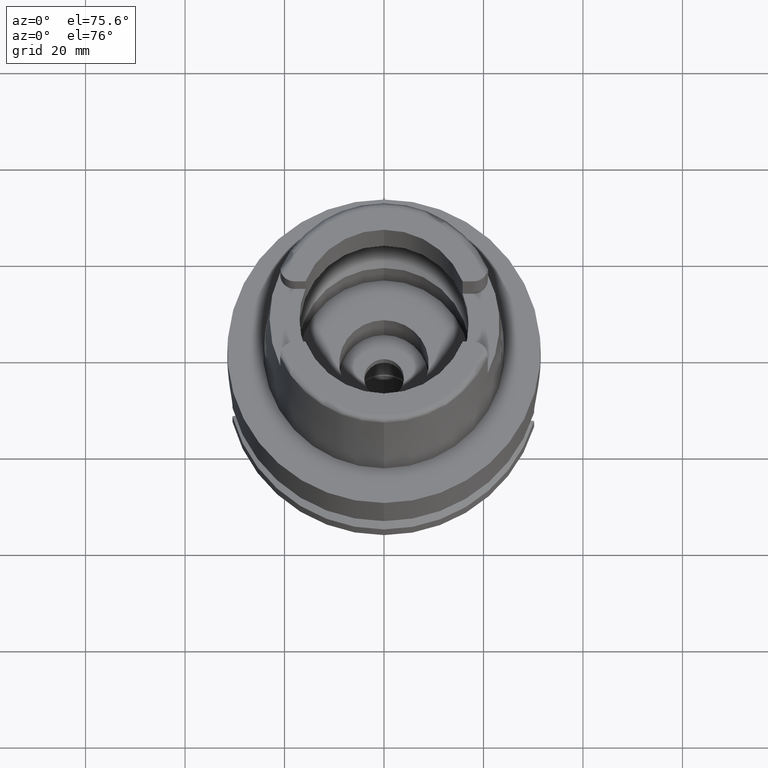
[diagram: clean part render]
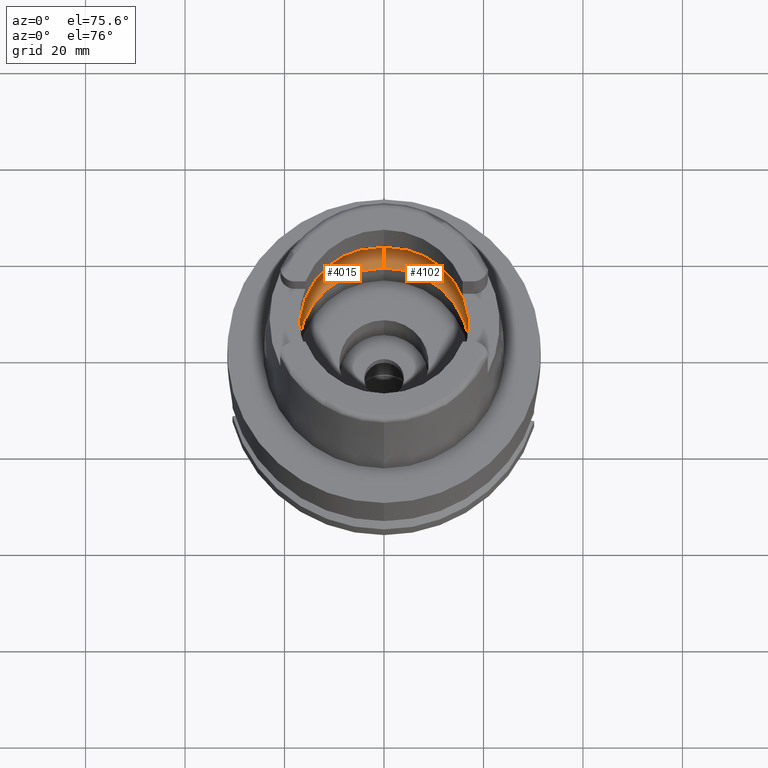
[diagram: same view with one multi-face feature highlighted, each face labeled with its STEP entity id]
A machine part, auxiliary view. The highlighted faces form ONE feature: a constant-radius fillet chain: 2 tangent blend faces with common blend radius 8 mm. The faces share edges in the B-rep.
Their STEP definitions:
[1] entity #4102 (Torus):
#2037=CARTESIAN_POINT('',(0.E0,-1.2E1,6.186348233825E0));
#2038=DIRECTION('',(-1.E0,0.E0,0.E0));
#2039=DIRECTION('',(0.E0,-6.5625E-1,-7.545435292281E-1));
#2040=AXIS2_PLACEMENT_3D('',#2037,#2038,#2039);
#2101=CARTESIAN_POINT('',(1.984575864666E1,-2.479085262491E0,6.186348233825E0));
#2130=CARTESIAN_POINT('',(1.984575864666E1,2.479085262491E0,6.186348233825E0));
#2149=CARTESIAN_POINT('',(1.994501428476E1,0.E0,5.25E0));
#2150=CARTESIAN_POINT('',(1.994501428476E1,-3.022109186395E-1,5.25E0));
#2151=CARTESIAN_POINT('',(1.994018886112E1,-9.058486760299E-1,
5.323260138817E0));
#2152=CARTESIAN_POINT('',(1.991332874853E1,-1.758885968800E0,5.646923075843E0));
#2153=CARTESIAN_POINT('',(1.987370755586E1,-2.255346565443E0,5.989213921339E0));
#2154=CARTESIAN_POINT('',(1.984575864666E1,-2.479085262491E0,6.186348233825E0));
#2159=CARTESIAN_POINT('',(0.E0,0.E0,6.186348233825E0));
#2160=DIRECTION('',(0.E0,0.E0,-1.E0));
#2161=DIRECTION('',(9.922879323328E-1,-1.239542631245E-1,0.E0));
#2162=AXIS2_PLACEMENT_3D('',#2159,#2160,#2161);
#2167=CARTESIAN_POINT('',(0.E0,0.E0,1.500000000001E-1));
#2168=DIRECTION('',(0.E0,0.E0,1.E0));
#2169=DIRECTION('',(0.E0,-1.E0,0.E0));
#2170=AXIS2_PLACEMENT_3D('',#2167,#2168,#2169);
#2175=CARTESIAN_POINT('',(0.E0,1.2E1,6.186348233825E0));
#2176=DIRECTION('',(1.E0,0.E0,0.E0));
#2177=DIRECTION('',(0.E0,6.5625E-1,-7.545435292281E-1));
#2178=AXIS2_PLACEMENT_3D('',#2175,#2176,#2177);
#2183=CARTESIAN_POINT('',(0.E0,0.E0,6.186348233825E0));
#2184=DIRECTION('',(0.E0,0.E0,-1.E0));
#2185=DIRECTION('',(0.E0,1.E0,0.E0));
#2186=AXIS2_PLACEMENT_3D('',#2183,#2184,#2185);
#2191=CARTESIAN_POINT('',(1.984575864666E1,2.479085262491E0,6.186348233825E0));
#2192=CARTESIAN_POINT('',(1.987370781167E1,2.255344517610E0,5.989212117010E0));
#2193=CARTESIAN_POINT('',(1.991332909699E1,1.758880408516E0,5.646919602665E0));
#2194=CARTESIAN_POINT('',(1.994018903230E1,9.058380857037E-1,5.323257641096E0));
#2195=CARTESIAN_POINT('',(1.994501428476E1,3.022062841843E-1,5.25E0));
#2196=CARTESIAN_POINT('',(1.994501428476E1,0.E0,5.25E0));
#2356=CARTESIAN_POINT('',(0.E0,-2.E1,6.186348233825E0));
#2357=VERTEX_POINT('',#2356);
#2358=CARTESIAN_POINT('',(0.E0,2.E1,6.186348233825E0));
#2359=VERTEX_POINT('',#2358);
#2364=VERTEX_POINT('',#2101);
#2366=VERTEX_POINT('',#2149);
#2367=VERTEX_POINT('',#2130);
#2368=CARTESIAN_POINT('',(0.E0,1.725E1,1.500000000001E-1));
#2369=VERTEX_POINT('',#2368);
#2370=CARTESIAN_POINT('',(0.E0,-1.725E1,1.500000000001E-1));
#2371=VERTEX_POINT('',#2370);
#4087=CARTESIAN_POINT('',(0.E0,0.E0,6.186348233825E0));
#4088=DIRECTION('',(0.E0,0.E0,1.E0));
#4089=DIRECTION('',(0.E0,1.E0,0.E0));
#4090=AXIS2_PLACEMENT_3D('',#4087,#4088,#4089);
#4091=TOROIDAL_SURFACE('',#4090,1.2E1,8.E0);
#4092=ORIENTED_EDGE('',*,*,#4077,.T.);
#4093=ORIENTED_EDGE('',*,*,#4066,.T.);
#4094=ORIENTED_EDGE('',*,*,#4009,.F.);
#4095=ORIENTED_EDGE('',*,*,#3974,.T.);
#4096=ORIENTED_EDGE('',*,*,#4006,.T.);
#4097=ORIENTED_EDGE('',*,*,#4060,.T.);
#4099=ORIENTED_EDGE('',*,*,#4098,.T.);
#4100=EDGE_LOOP('',(#4092,#4093,#4094,#4095,#4096,#4097,#4099));
#4101=FACE_OUTER_BOUND('',#4100,.F.);
#2041=CIRCLE('',#2040,8.E0);
#2155=B_SPLINE_CURVE_WITH_KNOTS('',3,(#2149,#2150,#2151,#2152,#2153,#2154),
.UNSPECIFIED.,.F.,.F.,(4,1,1,4),(0.E0,3.333333333333E-1,6.666666666667E-1,1.E0),
.UNSPECIFIED.);
#2163=CIRCLE('',#2162,2.E1);
#2171=CIRCLE('',#2170,1.725E1);
#2179=CIRCLE('',#2178,8.E0);
#2187=CIRCLE('',#2186,2.E1);
#2197=B_SPLINE_CURVE_WITH_KNOTS('',3,(#2191,#2192,#2193,#2194,#2195,#2196),
.UNSPECIFIED.,.F.,.F.,(4,1,1,4),(0.E0,3.333333333333E-1,6.666666666667E-1,1.E0),
.UNSPECIFIED.);
#3974=EDGE_CURVE('',#2371,#2369,#2171,.T.);
#4006=EDGE_CURVE('',#2369,#2359,#2179,.T.);
#4009=EDGE_CURVE('',#2371,#2357,#2041,.T.);
#4060=EDGE_CURVE('',#2359,#2367,#2187,.T.);
#4066=EDGE_CURVE('',#2364,#2357,#2163,.T.);
#4077=EDGE_CURVE('',#2366,#2364,#2155,.T.);
#4098=EDGE_CURVE('',#2367,#2366,#2197,.T.);
#4102=ADVANCED_FACE('',(#4101),#4091,.F.);
[2] entity #4015 (Torus):
#2001=CARTESIAN_POINT('',(-1.984575864666E1,-2.479085262491E0,
6.186348233825E0));
#2002=CARTESIAN_POINT('',(-1.987370771882E1,-2.255345260874E0,
5.989212771894E0));
#2003=CARTESIAN_POINT('',(-1.991332895189E1,-1.758882382518E0,
5.646921041047E0));
#2004=CARTESIAN_POINT('',(-1.994018891292E1,-9.058447440112E-1,
5.323259319607E0));
#2005=CARTESIAN_POINT('',(-1.994501428476E1,-3.022092202537E-1,5.25E0));
#2006=CARTESIAN_POINT('',(-1.994501428476E1,0.E0,5.25E0));
#2011=CARTESIAN_POINT('',(-1.994501428476E1,0.E0,5.25E0));
#2012=CARTESIAN_POINT('',(-1.994501428476E1,3.022079959061E-1,5.25E0));
#2013=CARTESIAN_POINT('',(-1.994018898018E1,9.058420490936E-1,
5.323258465798E0));
#2014=CARTESIAN_POINT('',(-1.991332889140E1,1.758884038002E0,5.646921660838E0));
#2015=CARTESIAN_POINT('',(-1.987370764676E1,2.255345837801E0,5.989213280220E0));
#2016=CARTESIAN_POINT('',(-1.984575864666E1,2.479085262491E0,6.186348233825E0));
#2021=CARTESIAN_POINT('',(0.E0,0.E0,6.186348233825E0));
#2022=DIRECTION('',(0.E0,0.E0,-1.E0));
#2023=DIRECTION('',(-9.922879323328E-1,1.239542631245E-1,0.E0));
#2024=AXIS2_PLACEMENT_3D('',#2021,#2022,#2023);
#2029=CARTESIAN_POINT('',(0.E0,0.E0,1.500000000001E-1));
#2030=DIRECTION('',(0.E0,0.E0,1.E0));
#2031=DIRECTION('',(0.E0,1.E0,0.E0));
#2032=AXIS2_PLACEMENT_3D('',#2029,#2030,#2031);
#2037=CARTESIAN_POINT('',(0.E0,-1.2E1,6.186348233825E0));
#2038=DIRECTION('',(-1.E0,0.E0,0.E0));
#2039=DIRECTION('',(0.E0,-6.5625E-1,-7.545435292281E-1));
#2040=AXIS2_PLACEMENT_3D('',#2037,#2038,#2039);
#2045=CARTESIAN_POINT('',(0.E0,0.E0,6.186348233825E0));
#2046=DIRECTION('',(0.E0,0.E0,-1.E0));
#2047=DIRECTION('',(0.E0,-1.E0,0.E0));
#2048=AXIS2_PLACEMENT_3D('',#2045,#2046,#2047);
#2072=CARTESIAN_POINT('',(-1.984575864666E1,-2.479085262491E0,
6.186348233825E0));
#2175=CARTESIAN_POINT('',(0.E0,1.2E1,6.186348233825E0));
#2176=DIRECTION('',(1.E0,0.E0,0.E0));
#2177=DIRECTION('',(0.E0,6.5625E-1,-7.545435292281E-1));
#2178=AXIS2_PLACEMENT_3D('',#2175,#2176,#2177);
#2355=VERTEX_POINT('',#2072);
#2356=CARTESIAN_POINT('',(0.E0,-2.E1,6.186348233825E0));
#2357=VERTEX_POINT('',#2356);
#2358=CARTESIAN_POINT('',(0.E0,2.E1,6.186348233825E0));
#2359=VERTEX_POINT('',#2358);
#2360=CARTESIAN_POINT('',(-1.984575864666E1,2.479085262490E0,6.186348233825E0));
#2361=VERTEX_POINT('',#2360);
#2362=CARTESIAN_POINT('',(-1.994501428476E1,0.E0,5.25E0));
#2363=VERTEX_POINT('',#2362);
#2368=CARTESIAN_POINT('',(0.E0,1.725E1,1.500000000001E-1));
#2369=VERTEX_POINT('',#2368);
#2370=CARTESIAN_POINT('',(0.E0,-1.725E1,1.500000000001E-1));
#2371=VERTEX_POINT('',#2370);
#3995=CARTESIAN_POINT('',(0.E0,0.E0,6.186348233825E0));
#3996=DIRECTION('',(0.E0,0.E0,1.E0));
#3997=DIRECTION('',(0.E0,1.E0,0.E0));
#3998=AXIS2_PLACEMENT_3D('',#3995,#3996,#3997);
#3999=TOROIDAL_SURFACE('',#3998,1.2E1,8.E0);
#4001=ORIENTED_EDGE('',*,*,#4000,.T.);
#4003=ORIENTED_EDGE('',*,*,#4002,.T.);
#4005=ORIENTED_EDGE('',*,*,#4004,.T.);
#4007=ORIENTED_EDGE('',*,*,#4006,.F.);
#4008=ORIENTED_EDGE('',*,*,#3990,.T.);
#4010=ORIENTED_EDGE('',*,*,#4009,.T.);
#4012=ORIENTED_EDGE('',*,*,#4011,.T.);
#4013=EDGE_LOOP('',(#4001,#4003,#4005,#4007,#4008,#4010,#4012));
#4014=FACE_OUTER_BOUND('',#4013,.F.);
#2007=B_SPLINE_CURVE_WITH_KNOTS('',3,(#2001,#2002,#2003,#2004,#2005,#2006),
.UNSPECIFIED.,.F.,.F.,(4,1,1,4),(0.E0,3.333333333333E-1,6.666666666667E-1,1.E0),
.UNSPECIFIED.);
#2017=B_SPLINE_CURVE_WITH_KNOTS('',3,(#2011,#2012,#2013,#2014,#2015,#2016),
.UNSPECIFIED.,.F.,.F.,(4,1,1,4),(0.E0,3.333333333333E-1,6.666666666667E-1,1.E0),
.UNSPECIFIED.);
#2025=CIRCLE('',#2024,2.E1);
#2033=CIRCLE('',#2032,1.725E1);
#2041=CIRCLE('',#2040,8.E0);
#2049=CIRCLE('',#2048,2.E1);
#2179=CIRCLE('',#2178,8.E0);
#3990=EDGE_CURVE('',#2369,#2371,#2033,.T.);
#4000=EDGE_CURVE('',#2355,#2363,#2007,.T.);
#4002=EDGE_CURVE('',#2363,#2361,#2017,.T.);
#4004=EDGE_CURVE('',#2361,#2359,#2025,.T.);
#4006=EDGE_CURVE('',#2369,#2359,#2179,.T.);
#4009=EDGE_CURVE('',#2371,#2357,#2041,.T.);
#4011=EDGE_CURVE('',#2357,#2355,#2049,.T.);
#4015=ADVANCED_FACE('',(#4014),#3999,.F.);